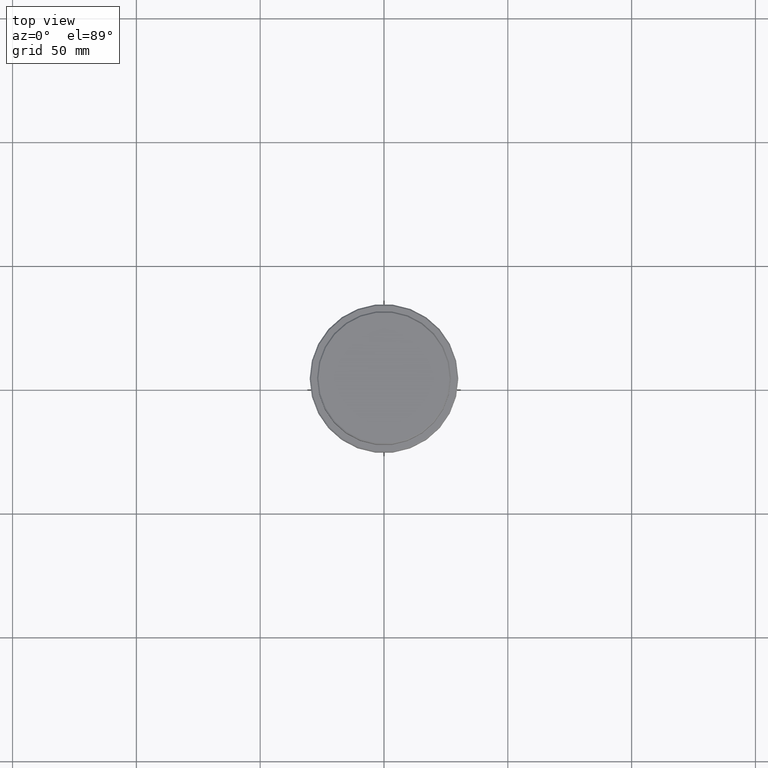
[diagram: clean part render]
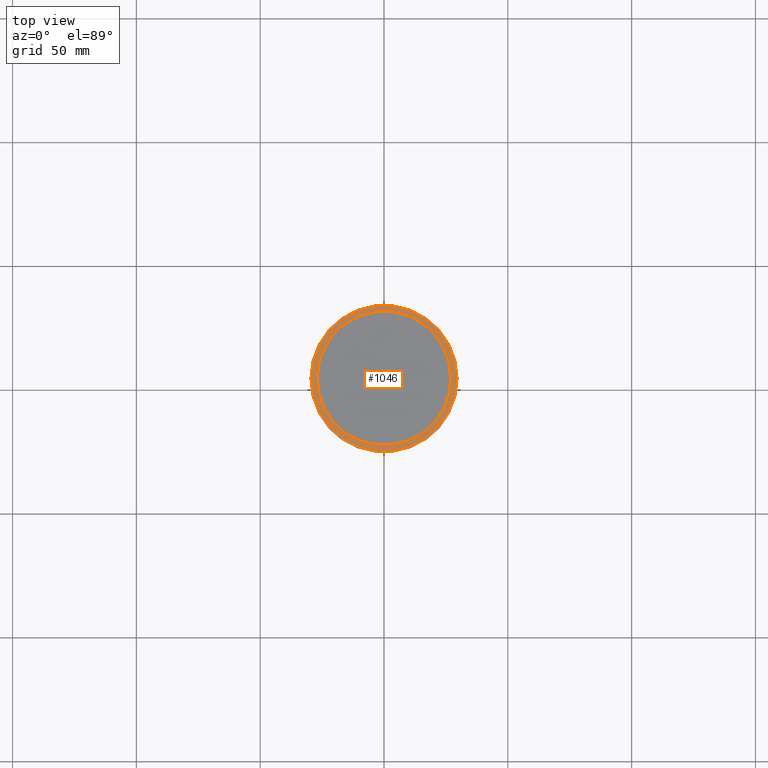
[diagram: same view with one face highlighted and labeled with its STEP entity id]
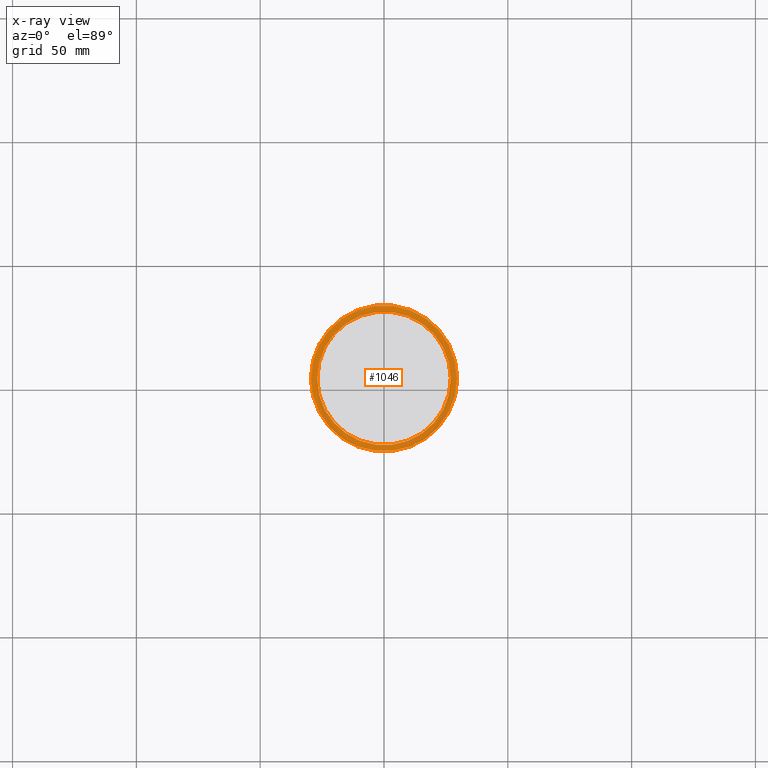
[diagram: x-ray of the same camera — body ghosted, the highlighted face saturated]
A machine part, top view. The second image highlights one B-rep face of the part: STEP entity #1046.
The next image is the same camera in x-ray: the body ghosted, the highlighted face saturated — about 0% of this face is hidden behind the body in this view.
In plain terms, the highlighted planar face has unit normal (0, -0, 1).
Its self-contained STEP definition (entity closure, byte-faithful):
#45 = ORIENTED_EDGE ( 'NONE', *, *, #745, .T. ) ;
#47 = EDGE_LOOP ( 'NONE', ( #602, #405 ) ) ;
#59 = PLANE ( 'NONE',  #1139 ) ;
#103 = DIRECTION ( 'NONE',  ( 1.000000000000000000, 0.000000000000000000, 0.000000000000000000 ) ) ;
#109 = FACE_OUTER_BOUND ( 'NONE', #573, .T. ) ;
#125 = CIRCLE ( 'NONE', #605, 29.50000000000000000 ) ;
#136 = DIRECTION ( 'NONE',  ( -0.000000000000000000, -0.000000000000000000, 1.000000000000000000 ) ) ;
#156 = VERTEX_POINT ( 'NONE', #853 ) ;
#193 = CIRCLE ( 'NONE', #539, 26.99999999999999289 ) ;
#214 = DIRECTION ( 'NONE',  ( 0.000000000000000000, -0.000000000000000000, 1.000000000000000000 ) ) ;
#315 = CIRCLE ( 'NONE', #1118, 29.50000000000000000 ) ;
#359 = CARTESIAN_POINT ( 'NONE',  ( 0.000000000000000000, 0.000000000000000000, -12.00000000000000178 ) ) ;
#369 = VERTEX_POINT ( 'NONE', #1098 ) ;
#382 = VERTEX_POINT ( 'NONE', #671 ) ;
#385 = ORIENTED_EDGE ( 'NONE', *, *, #964, .T. ) ;
#405 = ORIENTED_EDGE ( 'NONE', *, *, #720, .T. ) ;
#412 = CIRCLE ( 'NONE', #601, 26.99999999999999289 ) ;
#451 = DIRECTION ( 'NONE',  ( 0.000000000000000000, 0.000000000000000000, -1.000000000000000000 ) ) ;
#539 = AXIS2_PLACEMENT_3D ( 'NONE', #655, #451, #1195 ) ;
#573 = EDGE_LOOP ( 'NONE', ( #385, #45 ) ) ;
#601 = AXIS2_PLACEMENT_3D ( 'NONE', #359, #786, #677 ) ;
#602 = ORIENTED_EDGE ( 'NONE', *, *, #1262, .T. ) ;
#605 = AXIS2_PLACEMENT_3D ( 'NONE', #1189, #1096, #103 ) ;
#614 = VERTEX_POINT ( 'NONE', #1383 ) ;
#655 = CARTESIAN_POINT ( 'NONE',  ( 0.000000000000000000, 0.000000000000000000, -12.00000000000000178 ) ) ;
#671 = CARTESIAN_POINT ( 'NONE',  ( 26.99999999999999289, 0.000000000000000000, -12.00000000000000178 ) ) ;
#677 = DIRECTION ( 'NONE',  ( 1.000000000000000000, 0.000000000000000000, 0.000000000000000000 ) ) ;
#720 = EDGE_CURVE ( 'NONE', #614, #382, #193, .T. ) ;
#745 = EDGE_CURVE ( 'NONE', #156, #369, #125, .T. ) ;
#786 = DIRECTION ( 'NONE',  ( 0.000000000000000000, 0.000000000000000000, -1.000000000000000000 ) ) ;
#853 = CARTESIAN_POINT ( 'NONE',  ( 29.50000000000000000, 3.643324227463375391E-15, -12.00000000000000178 ) ) ;
#916 = CARTESIAN_POINT ( 'NONE',  ( 0.000000000000000000, 0.000000000000000000, -12.00000000000000178 ) ) ;
#946 = FACE_BOUND ( 'NONE', #47, .T. ) ;
#964 = EDGE_CURVE ( 'NONE', #369, #156, #315, .T. ) ;
#1046 = ADVANCED_FACE ( 'NONE', ( #109, #946 ), #59, .T. ) ;
#1087 = CARTESIAN_POINT ( 'NONE',  ( 0.000000000000000000, 26.49999999999999645, -12.00000000000000178 ) ) ;
#1096 = DIRECTION ( 'NONE',  ( -0.000000000000000000, -0.000000000000000000, 1.000000000000000000 ) ) ;
#1098 = CARTESIAN_POINT ( 'NONE',  ( -29.50000000000000000, 0.000000000000000000, -12.00000000000000178 ) ) ;
#1118 = AXIS2_PLACEMENT_3D ( 'NONE', #916, #136, #1335 ) ;
#1139 = AXIS2_PLACEMENT_3D ( 'NONE', #1087, #214, #1260 ) ;
#1189 = CARTESIAN_POINT ( 'NONE',  ( 0.000000000000000000, 0.000000000000000000, -12.00000000000000178 ) ) ;
#1195 = DIRECTION ( 'NONE',  ( 1.000000000000000000, 0.000000000000000000, 0.000000000000000000 ) ) ;
#1260 = DIRECTION ( 'NONE',  ( 1.000000000000000000, 0.000000000000000000, 0.000000000000000000 ) ) ;
#1262 = EDGE_CURVE ( 'NONE', #382, #614, #412, .T. ) ;
#1335 = DIRECTION ( 'NONE',  ( 1.000000000000000000, 0.000000000000000000, 0.000000000000000000 ) ) ;
#1383 = CARTESIAN_POINT ( 'NONE',  ( -26.99999999999999289, 3.306546357697852944E-15, -12.00000000000000178 ) ) ;